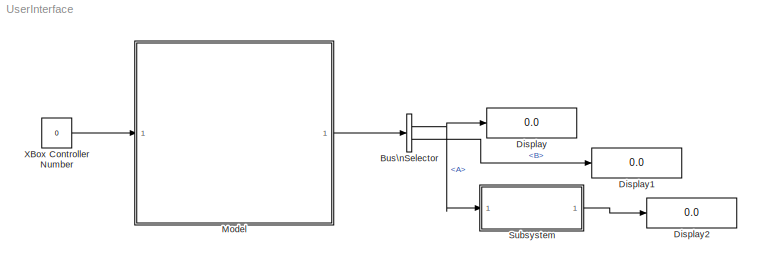
MODEL UserInterface
KIND model
BLOCK [BusSelector] Bus\nSelector
  OutputSignals = A,B
  Ports = [1, 2]
  SID = 3
BLOCK [Display] Display
  Decimation = 1
  Ports = [1]
  SID = 4
BLOCK [Display] Display1
  Decimation = 1
  Ports = [1]
  SID = 31
BLOCK [Display] Display2
  Decimation = 1
  Ports = [1]
  SID = 32
BLOCK [ModelReference] Model
  CopyOfModelName = ControllerXbox_MR.mdl
  DefaultDataLogging = on
  ModelNameDialog = ControllerXbox_MR.mdl
  ModelReferenceVersion = 1.13
  Ports = [1, 1]
  SID = 1
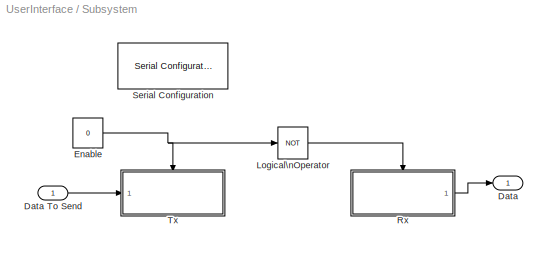
BLOCK [SubSystem] Subsystem
  Ports = [1, 1]
  RequestExecContextInheritance = off
  SID = 14
BLOCK [Outport] Subsystem/Data
  IconDisplay = Port number
  SID = 16
BLOCK [Inport] Subsystem/Data To Send
  IconDisplay = Port number
  SID = 15
BLOCK [Constant] Subsystem/Enable
  SID = 23
  Value = 0
BLOCK [Logic] Subsystem/Logical\nOperator
  AllPortsSameDT = off
  Operator = NOT
  OutDataTypeStr = boolean
  Ports = [1, 1]
  SID = 24
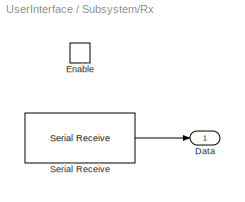
BLOCK [SubSystem] Subsystem/Rx
  Ports = [0, 1, 1]
  RequestExecContextInheritance = off
  SID = 19
  TreatAsAtomicUnit = on
BLOCK [Outport] Subsystem/Rx/Data
  IconDisplay = Port number
  SID = 29
BLOCK [EnablePort] Subsystem/Rx/Enable
  Ports = []
  SID = 21
BLOCK [Reference] Subsystem/Rx/Serial Receive  REF=instrumentlib/Serial Receive
  ActionDataUnavailable = Output custom value
  ComPort = COM5
  ComPortMenu = COM5
  CustomValue = -1
  DataSize = 1
  DataType = uint8
  EnableBlockingMode = on
  ObjConstructor = serial('COM5');
  Ports = [0, 1]
  SID = 17
  SampleTime = .5
  SourceBlock = instrumentlib/Serial Receive
  SourceType = Serial Receive
  Terminator = <none>
BLOCK [Reference] Subsystem/Serial Configuration  REF=instrumentlib/Serial Configuration
  BaudRate = 57600
  ByteOrder = LittleEndian
  ComPort = COM5
  ComPortMenu = COM5
  DataBits = 8
  FlowControl = none
  ObjConstructor = serial('COM5');
  Parity = none
  Ports = []
  Priority = -200000
  SID = 8
  SourceBlock = instrumentlib/Serial Configuration
  SourceType = Serial Configuration
  StopBits = 1
  Timeout = 3
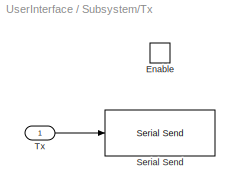
BLOCK [SubSystem] Subsystem/Tx
  Ports = [1, 0, 1]
  RequestExecContextInheritance = off
  SID = 25
  TreatAsAtomicUnit = on
BLOCK [EnablePort] Subsystem/Tx/Enable
  Ports = []
  SID = 27
BLOCK [Reference] Subsystem/Tx/Serial Send  REF=instrumentlib/Serial Send
  ComPort = COM5
  ComPortMenu = COM5
  EnableBlockingMode = on
  ObjConstructor = serial('COM5');
  Ports = [1]
  SID = 28
  SourceBlock = instrumentlib/Serial Send
  SourceType = Serial Send
  Terminator = <none>
BLOCK [Inport] Subsystem/Tx/Tx
  IconDisplay = Port number
  SID = 26
BLOCK [Constant] XBox Controller Number
  SID = 2
  Value = 0
NET Bus\nSelector:1 -> Display:1, Subsystem:1
LINE Bus\nSelector:2 -> Display1:1
LINE Model:1 -> Bus\nSelector:1
LINE Subsystem/Data To Send:1 -> Subsystem/Tx:1
NET Subsystem/Enable:1 -> Subsystem/Logical\nOperator:1, Subsystem/Tx:enable
LINE Subsystem/Logical\nOperator:1 -> Subsystem/Rx:enable
LINE Subsystem/Rx/Serial Receive:1 -> Subsystem/Rx/Data:1
LINE Subsystem/Rx:1 -> Subsystem/Data:1
LINE Subsystem/Tx/Tx:1 -> Subsystem/Tx/Serial Send:1
LINE Subsystem:1 -> Display2:1
LINE XBox Controller Number:1 -> Model:1
note: NET lines group one-source signal fan-out (src -> all destinations, sorted); 1:1 wires keep LINE
